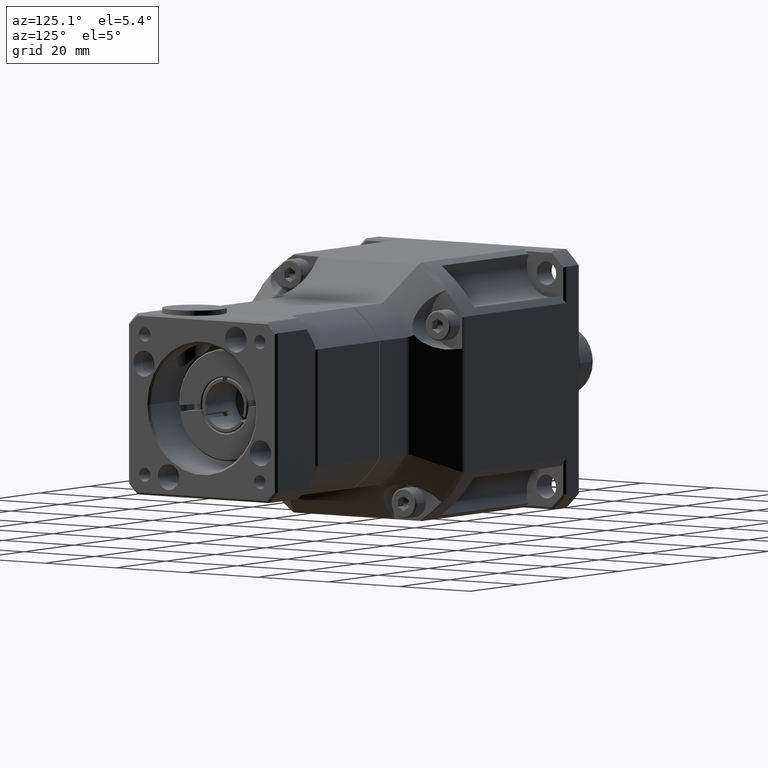
[diagram: clean part render]
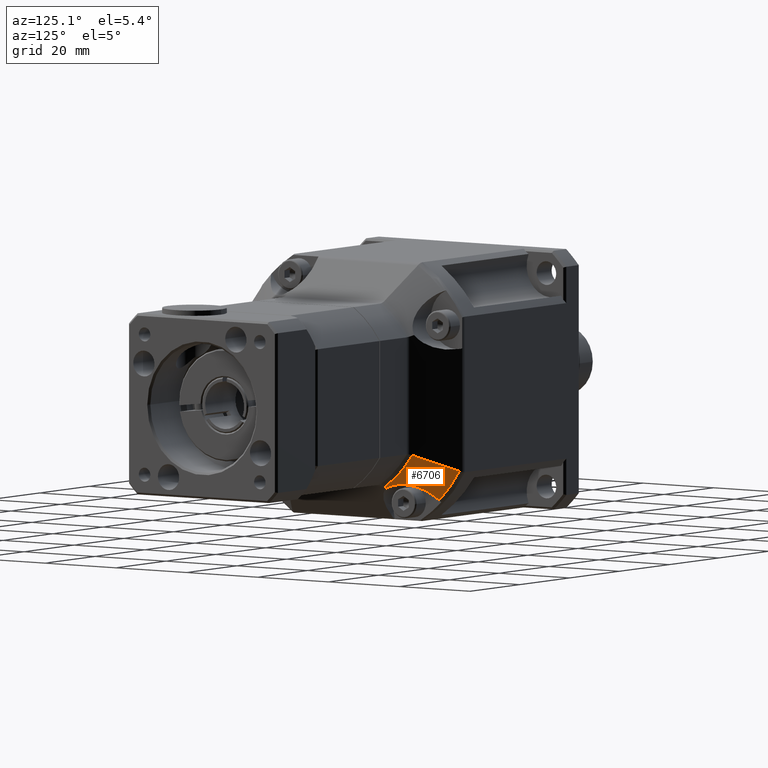
[diagram: same view with one face highlighted and labeled with its STEP entity id]
A machine part, auxiliary view. The second image highlights one B-rep face of the part: STEP entity #6706.
In plain terms, the highlighted face is a freeform B-spline surface patch.
Its self-contained STEP definition (entity closure, byte-faithful):
#13=B_SPLINE_SURFACE_WITH_KNOTS('',3,3,((#11365,#11366,#11367,#11368),(#11369,
#11370,#11371,#11372),(#11373,#11374,#11375,#11376),(#11377,#11378,#11379,
#11380)),.UNSPECIFIED.,.F.,.F.,.F.,(4,4),(4,4),(0.,1.),(0.0662069071942332,
0.93379294632449),.UNSPECIFIED.);
#120=B_SPLINE_CURVE_WITH_KNOTS('',3,(#11383,#11384,#11385,#11386),
 .UNSPECIFIED.,.F.,.F.,(4,4),(-1.16008550855253,0.),.UNSPECIFIED.);
#121=B_SPLINE_CURVE_WITH_KNOTS('',3,(#11390,#11391,#11392,#11393,#11394,
#11395,#11396,#11397,#11398,#11399,#11400,#11401),.UNSPECIFIED.,.F.,.F.,
(4,2,2,2,2,4),(-1.55476492774601,-1.37159996734111,-1.15692149777648,-0.860922769885272,
-0.442975676478002,-0.0920078956553385),.UNSPECIFIED.);
#122=B_SPLINE_CURVE_WITH_KNOTS('',3,(#11403,#11404,#11405,#11406),
 .UNSPECIFIED.,.F.,.F.,(4,4),(-1.60200035764429,-0.727007946861642),
 .UNSPECIFIED.);
#501=LINE('',#11388,#820);
#502=LINE('',#11407,#821);
#820=VECTOR('',#9076,0.467231931594965);
#821=VECTOR('',#9077,11.7016637350991);
#1888=FACE_OUTER_BOUND('',#2464,.T.);
#2464=EDGE_LOOP('',(#5720,#5721,#5722,#5723,#5724));
#3423=VERTEX_POINT('',#11381);
#3424=VERTEX_POINT('',#11382);
#3425=VERTEX_POINT('',#11387);
#3426=VERTEX_POINT('',#11389);
#3427=VERTEX_POINT('',#11402);
#4233=EDGE_CURVE('',#3423,#3424,#120,.T.);
#4234=EDGE_CURVE('',#3425,#3423,#501,.T.);
#4235=EDGE_CURVE('',#3425,#3426,#121,.T.);
#4236=EDGE_CURVE('',#3427,#3426,#122,.T.);
#4237=EDGE_CURVE('',#3427,#3424,#502,.T.);
#5720=ORIENTED_EDGE('',*,*,#4233,.F.);
#5721=ORIENTED_EDGE('',*,*,#4234,.F.);
#5722=ORIENTED_EDGE('',*,*,#4235,.T.);
#5723=ORIENTED_EDGE('',*,*,#4236,.F.);
#5724=ORIENTED_EDGE('',*,*,#4237,.T.);
#6706=ADVANCED_FACE('',(#1888),#13,.F.);
#9076=DIRECTION('',(0.667272467033656,-0.330900150313708,0.667272467033658));
#9077=DIRECTION('',(0.667272467033657,-0.667272467033658,0.330900150313706));
#11365=CARTESIAN_POINT('Ctrl Pts',(8.71771197773705,-21.2812103020808,-5.19123989431037));
#11366=CARTESIAN_POINT('Ctrl Pts',(11.3204700951278,-23.8839684194716,-3.90053318179831));
#11367=CARTESIAN_POINT('Ctrl Pts',(13.9232282125186,-26.4867265368623,-2.60982646928625));
#11368=CARTESIAN_POINT('Ctrl Pts',(16.5259863299094,-29.0894846542531,-1.31911975677418));
#11369=CARTESIAN_POINT('Ctrl Pts',(8.71771197773706,-24.1497831365702,-9.9501230608777));
#11370=CARTESIAN_POINT('Ctrl Pts',(11.3204700951278,-26.4583217359708,-8.10358463606066));
#11371=CARTESIAN_POINT('Ctrl Pts',(13.9232282125186,-28.7645767671088,-6.25913887065368));
#11372=CARTESIAN_POINT('Ctrl Pts',(16.5259863299094,-31.0731153665093,-4.41260044583664));
#11373=CARTESIAN_POINT('Ctrl Pts',(8.71771197773707,-28.194196403332,-13.9945363276395));
#11374=CARTESIAN_POINT('Ctrl Pts',(11.3204700951278,-30.040734828149,-11.6859977282389));
#11375=CARTESIAN_POINT('Ctrl Pts',(13.9232282125186,-31.885180593556,-9.37974269710094));
#11376=CARTESIAN_POINT('Ctrl Pts',(16.5259863299094,-33.7317190183731,-7.07120409770037));
#11377=CARTESIAN_POINT('Ctrl Pts',(8.71771197773707,-32.9530795698993,-16.8631091621289));
#11378=CARTESIAN_POINT('Ctrl Pts',(11.3204700951278,-34.2437862824114,-14.2603510447381));
#11379=CARTESIAN_POINT('Ctrl Pts',(13.9232282125186,-35.5344929949234,-11.6575929273474));
#11380=CARTESIAN_POINT('Ctrl Pts',(16.5259863299094,-36.8251997074355,-9.05483480995659));
#11381=CARTESIAN_POINT('',(16.5259656940616,-36.8251894740913,-9.05485544580064));
#11382=CARTESIAN_POINT('',(16.5259656940616,-29.0894640184091,-1.3191299901184));
#11383=CARTESIAN_POINT('Ctrl Pts',(16.5259656940524,-36.8251894740944,-9.05485544579575));
#11384=CARTESIAN_POINT('Ctrl Pts',(16.5259925974313,-33.7317237679336,-7.07119936628692));
#11385=CARTESIAN_POINT('Ctrl Pts',(16.5259925974313,-31.0731200979228,-4.41259569627605));
#11386=CARTESIAN_POINT('Ctrl Pts',(16.5259656940524,-29.0894640184139,-1.31912999011525));
#11387=CARTESIAN_POINT('',(16.2141946903831,-36.6705823577276,-9.36662644948283));
#11388=CARTESIAN_POINT('',(8.12184981298898,-32.6575917600127,-17.458971326877));
#11389=CARTESIAN_POINT('',(8.71771376325723,-26.9552665107612,-12.2778372394627));
#11390=CARTESIAN_POINT('Ctrl Pts',(16.2141946903831,-36.6705823577276,-9.36662644948283));
#11391=CARTESIAN_POINT('Ctrl Pts',(16.1895164962785,-36.1896886067532,-9.09187227814287));
#11392=CARTESIAN_POINT('Ctrl Pts',(16.0903109847015,-35.688646211865,-8.88113245024289));
#11393=CARTESIAN_POINT('Ctrl Pts',(15.7416919247074,-34.5827406419137,-8.55473544890865));
#11394=CARTESIAN_POINT('Ctrl Pts',(15.4743987904114,-33.9897803905809,-8.46612705997918));
#11395=CARTESIAN_POINT('Ctrl Pts',(14.7290993161098,-32.6334975952501,-8.42316680530786));
#11396=CARTESIAN_POINT('Ctrl Pts',(14.207469436403,-31.8851258317115,-8.53192918426948));
#11397=CARTESIAN_POINT('Ctrl Pts',(12.8805778716587,-30.2371922919523,-9.02220839858357));
#11398=CARTESIAN_POINT('Ctrl Pts',(11.9892300169839,-29.3301901040774,-9.51868035035716));
#11399=CARTESIAN_POINT('Ctrl Pts',(10.2763084620735,-27.9022172461822,-10.7847977394391));
#11400=CARTESIAN_POINT('Ctrl Pts',(9.4832440683445,-27.3572595604888,-11.4853644389603));
#11401=CARTESIAN_POINT('Ctrl Pts',(8.71771376325723,-26.9552665107612,-12.2778372394627));
#11402=CARTESIAN_POINT('',(8.71776766513751,-21.2812659894813,-5.19121227895069));
#11403=CARTESIAN_POINT('Ctrl Pts',(8.7177676652416,-21.2812669930002,-5.19121137528423));
#11404=CARTESIAN_POINT('Ctrl Pts',(8.71772835970502,-22.8480838878285,-7.79037440512644));
#11405=CARTESIAN_POINT('Ctrl Pts',(8.71771052215983,-24.7656692382366,-10.1764550524259));
#11406=CARTESIAN_POINT('Ctrl Pts',(8.71771415292827,-26.95882352747,-12.2742479030702));
#11407=CARTESIAN_POINT('',(8.12184981298895,-20.6853481373327,-5.48672770419696));